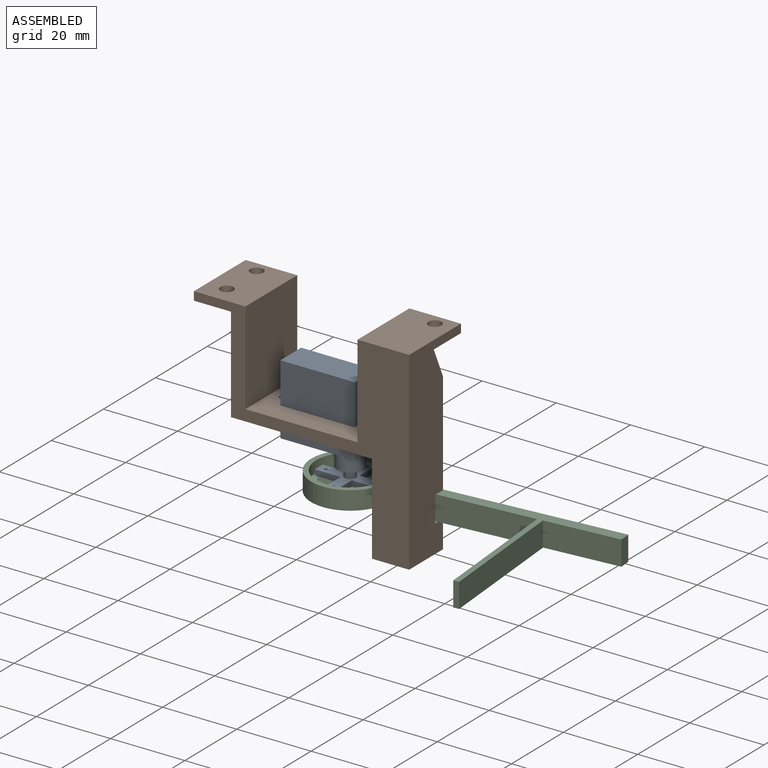
[diagram: assembled view]
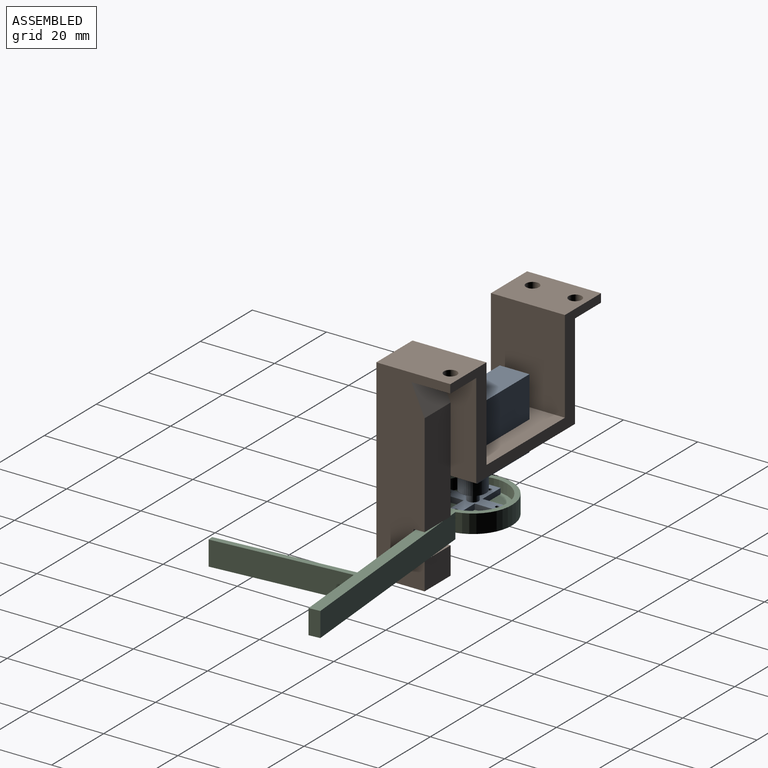
[diagram: assembled view, second angle]
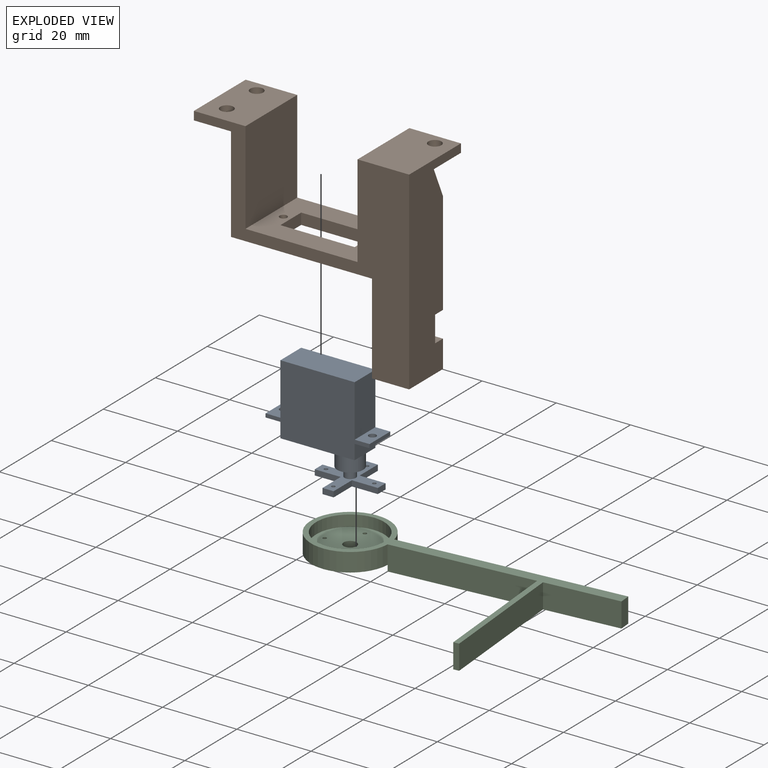
[diagram: exploded view]
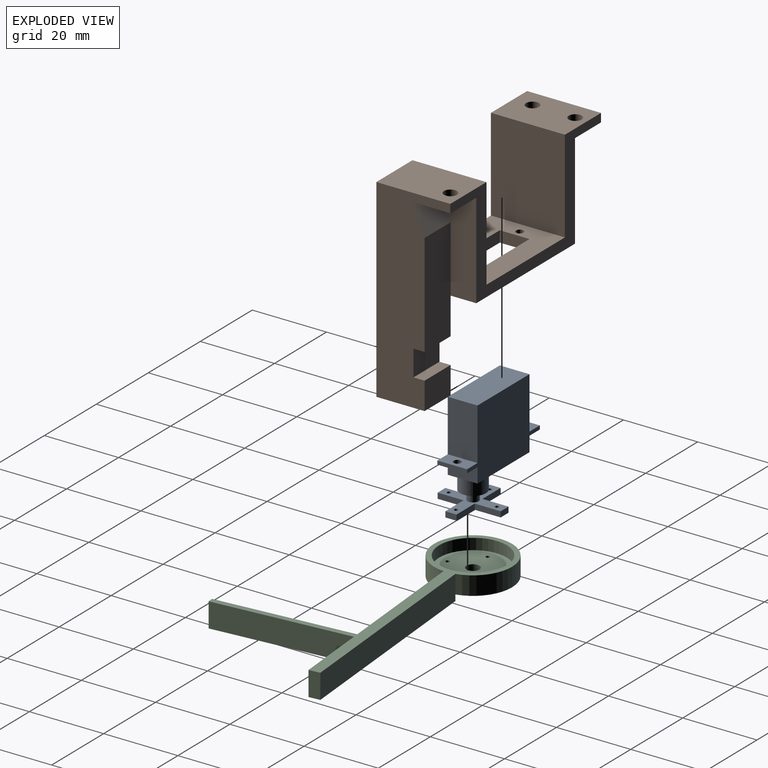
[diagram: exploded view, second angle]
ASSEMBLY  parts=3 mates=2
PART A: 41 faces, bbox 28.5x17x27 mm
  f0: plane 8x4mm, normal (-1,0,0), area 32mm2, adj f3,f5,f6,f16
  f1: plane 14x8mm, normal (1,0,0), area 112mm2, adj f3,f5,f7,f11
  f2: plane 14x8mm, normal (-1,0,0), area 112mm2, adj f3,f5,f7,f15
  f3: plane 24x19mm, normal (0,-1,0), area 384mm2, adj f0,f1,f2,f4,f6,f7,f10,f15
  f4: plane 8x4mm, normal (1,0,0), area 32mm2, adj f3,f5,f6,f13
  f5: plane 24x19mm, normal (0,1,0), area 384mm2, adj f0,f1,f2,f4,f6,f7,f12,f15
  f6: plane 20x8mm, normal (0,0,1), area 121.5mm2, adj f0,f3,f4,f5,f8
  f7: plane 20x8mm, normal (0,0,-1), area 160mm2, adj f1,f2,f3,f5
  f8: cylinder r=3.5mm len=7mm, axis (0,0,-1), area 88mm2, adj f6,f9
  f9: plane 7x7mm, normal (0,0,1), area 31.4mm2, adj f8,f18
  f10: plane 4x1mm, normal (0,-1,0), area 4mm2, adj f3,f11,f13,f14
  f11: plane 8x4mm, normal (0,0,-1), area 28.9mm2, adj f1,f10,f12,f14,f20
  f12: plane 4x1mm, normal (0,1,0), area 4mm2, adj f5,f11,f13,f14
  f13: plane 8x4mm, normal (0,0,1), area 28.9mm2, adj f4,f10,f12,f14,f20
  f14: plane 8x1mm, normal (1,0,0), area 8mm2, adj f10,f11,f12,f13
  f15: plane 8x4mm, normal (0,0,-1), area 28.9mm2, adj f2,f3,f5,f17,f19
  f16: plane 8x4mm, normal (0,0,1), area 28.9mm2, adj f0,f3,f5,f17,f19
  f17: plane 8x1mm, normal (-1,0,0), area 8mm2, adj f3,f5,f15,f16
  f18: cylinder r=1.5mm len=3mm, axis (0,0,-1), area 23.6mm2, adj f9,f34
  f19: cylinder r=1mm len=2mm, axis (0,0,1), area 6.3mm2, adj f15,f16
  f20: cylinder r=1mm len=2mm, axis (0,0,1), area 6.3mm2, adj f11,f13
  f21: plane 7x1.5mm, normal (0,1,0), area 10.5mm2, adj f22,f32,f33,f34
  f22: plane 3x1.5mm, normal (-1,0,0), area 4.5mm2, adj f21,f23,f33,f34
  f23: plane 7x1.5mm, normal (0,-1,0), area 10.5mm2, adj f22,f24,f33,f34
  f24: plane 7x1.5mm, normal (-1,0,0), area 10.5mm2, adj f23,f25,f33,f34
  f25: plane 3x1.5mm, normal (0,-1,0), area 4.5mm2, adj f24,f26,f33,f34
  f26: plane 7x1.5mm, normal (1,0,0), area 10.5mm2, adj f25,f27,f33,f34
  f27: plane 7x1.5mm, normal (0,-1,0), area 10.5mm2, adj f26,f28,f33,f34
  f28: plane 3x1.5mm, normal (1,0,0), area 4.5mm2, adj f27,f29,f33,f34
  f29: plane 7x1.5mm, normal (0,1,0), area 10.5mm2, adj f28,f30,f33,f34
  f30: plane 7x1.5mm, normal (1,0,0), area 10.5mm2, adj f29,f31,f33,f34
  f31: plane 3x1.5mm, normal (0,1,0), area 4.5mm2, adj f30,f32,f33,f34
  f32: plane 7x1.5mm, normal (-1,0,0), area 10.5mm2, adj f21,f31,f33,f34
  f33: plane 17x17mm, normal (0,0,1), area 86.7mm2, adj f21,f22,f23,f24,f25,f26,f27,f28
  f34: plane 17x17mm, normal (0,0,-1), area 82.8mm2, adj f18,f21,f22,f23,f24,f25,f26,f27
  f35: cylinder r=0.5mm len=1.5mm, axis (0,0,1), area 4.7mm2, adj f33,f34
  f36: cylinder r=0.5mm len=1.5mm, axis (0,0,1), area 4.7mm2, adj f33,f34
  f37: cylinder r=0.5mm len=1.5mm, axis (0,0,1), area 4.7mm2, adj f33,f34
  f38: cylinder r=0.5mm len=1.5mm, axis (0,0,1), area 4.7mm2, adj f33,f34
  f39: cylinder r=1mm len=2mm, axis (0,0,1), area 12.6mm2, adj f33,f40
  f40: plane 2x2mm, normal (0,0,1), area 3.1mm2, adj f39
PART B: 31 faces, bbox 58x19.9x52.3 mm
  f0: plane 52.3x19.93mm, normal (-1,0,0), area 661.1mm2, adj f1,f2,f5,f11,f14,f17,f26,f27
  f1: plane 27.75x10mm, normal (0,-1,0), area 277.5mm2, adj f0,f4,f25,f27,f30
  f2: plane 10x7.4mm, normal (0,-1,0), area 74mm2, adj f0,f25,f26,f29
  f3: plane 30.2x19.93mm, normal (0,0,1), area 435.7mm2, adj f5,f7,f8,f9,f10,f11,f13,f15
  f4: plane 25.7x10.47mm, normal (-1,0,0), area 192mm2, adj f1,f5,f12,f17,f30
  f5: plane 58x28mm, normal (0,-1,0), area 355.1mm2, adj f0,f3,f4,f6,f12,f13,f14,f15
  f6: plane 25.7x19.93mm, normal (1,0,0), area 512.3mm2, adj f5,f11,f12,f18
  f7: plane 8x3mm, normal (1,0,0), area 24mm2, adj f3,f8,f10,f12
  f8: plane 20x3mm, normal (0,-1,0), area 60mm2, adj f3,f7,f9,f12
  f9: plane 8x3mm, normal (-1,0,0), area 24mm2, adj f3,f8,f10,f12
  f10: plane 20x3mm, normal (0,1,0), area 60mm2, adj f3,f7,f9,f12
  f11: plane 58x52.3mm, normal (0,1,0), area 855.1mm2, adj f0,f3,f6,f12,f13,f14,f15,f16
  f12: plane 38x19.93mm, normal (0,0,-1), area 591.2mm2, adj f4,f5,f6,f7,f8,f9,f10,f11
  f13: plane 25x19.93mm, normal (1,0,0), area 498.4mm2, adj f3,f5,f11,f14
  f14: plane 19.93x13.9mm, normal (0,0,1), area 267.5mm2, adj f0,f5,f11,f13,f24
  f15: plane 25x19.93mm, normal (-1,0,0), area 498.4mm2, adj f3,f5,f11,f16
  f16: plane 19.93x13.9mm, normal (0,0,1), area 257.9mm2, adj f5,f11,f15,f19,f22,f23
  f17: plane 10.47x10mm, normal (0,0,-1), area 95mm2, adj f0,f4,f5,f24,f30
  f18: plane 19.93x10mm, normal (0,0,-1), area 180.1mm2, adj f5,f6,f11,f19,f22,f23
  f19: plane 19.93x2.3mm, normal (1,0,0), area 45.8mm2, adj f5,f11,f16,f18
  f20: cylinder r=1mm len=3mm, axis (0,0,-1), area 18.8mm2, adj f3,f12
  f21: cylinder r=1mm len=3mm, axis (0,0,-1), area 18.8mm2, adj f3,f12
  f22: cylinder r=1.75mm len=3.5mm, axis (0,0,-1), area 25.3mm2, adj f16,f18
  f23: cylinder r=1.75mm len=3.5mm, axis (0,0,-1), area 25.3mm2, adj f16,f18
  f24: cylinder r=1.75mm len=3.5mm, axis (0,0,-1), area 25.3mm2, adj f14,f17
  f25: plane 24.3x13mm, normal (1,0,0), area 295mm2, adj f1,f2,f11,f12,f26,f27,f28,f29
  f26: plane 13x10mm, normal (0,0,-1), area 130mm2, adj f0,f2,f11,f25
  f27: plane 10x3mm, normal (0,0,-1), area 30mm2, adj f0,f1,f25,f28
  f28: plane 10x7mm, normal (0,-1,0), area 70mm2, adj f0,f25,f27,f29
  f29: plane 10x3mm, normal (0,0,1), area 30mm2, adj f0,f2,f25,f28
  f30: plane 10x7.85mm, normal (0,-0.91,0.41), area 86.1mm2, adj f0,f1,f4,f17
PART C: 19 faces, bbox 80.5x49x6.6 mm
  f0: plane 38.11x6.6mm, normal (0,-1,0), area 251.5mm2, adj f2,f6,f14,f15,f17
  f1: plane 21x20.89mm, normal (0,0,1), area 333.4mm2, adj f2,f9,f10,f11,f12,f13,f14
  f2: cylinder r=10.5mm len=21mm, axis (0,0,-1), area 314.8mm2, adj f0,f1,f3,f6
  f3: plane 59.61x6.6mm, normal (0,1,0), area 393.4mm2, adj f2,f4,f6,f14,f15
  f4: plane 6.6x3mm, normal (-1,0,0), area 19.8mm2, adj f3,f5,f6,f15
  f5: plane 20x6.6mm, normal (0,-1,0), area 132mm2, adj f4,f6,f15,f16
  f6: plane 80.5x49mm, normal (0,0,-1), area 318.3mm2, adj f0,f2,f3,f4,f5,f7,f16,f17
  f7: cylinder r=9.14mm len=18.27mm, axis (0,0,-1), area 172.2mm2, adj f6,f8
  f8: plane 18.27x18.27mm, normal (0,0,-1), area 249.4mm2, adj f7,f9,f10,f11,f12,f13
  f9: cylinder r=0.5mm len=2mm, axis (0,0,-1), area 6.3mm2, adj f1,f8
  f10: cylinder r=0.5mm len=2mm, axis (0,0,-1), area 6.3mm2, adj f1,f8
  f11: cylinder r=0.5mm len=2mm, axis (0,0,-1), area 6.3mm2, adj f1,f8
  f12: cylinder r=1.75mm len=3.5mm, axis (0,0,-1), area 22mm2, adj f1,f8
  f13: cylinder r=0.5mm len=2mm, axis (0,0,-1), area 6.3mm2, adj f1,f8
  f14: plane 3x1.6mm, normal (1,0,0), area 4.8mm2, adj f0,f1,f3,f15
  f15: plane 59.61x40mm, normal (0,0,1), area 234.3mm2, adj f0,f3,f4,f5,f14,f16,f17,f18
  f16: plane 37x6.6mm, normal (-1,0,0), area 244.2mm2, adj f5,f6,f15,f18
  f17: plane 37x6.6mm, normal (1,0,0), area 244.2mm2, adj f0,f6,f15,f18
  f18: plane 6.6x1.5mm, normal (0,-1,0), area 9.9mm2, adj f6,f15,f16,f17
PLACE A rot(axis=(0,1,0),180deg) t=(-45.9,29.61,21.97)mm
PLACE B rot(axis=(0,0,1),180deg) t=(-34.24,24.35,7.97)mm
PLACE C rot(axis=(0.04,-1,0),180deg) t=(-28.14,23.81,-2.03)mm
MATE revolute C.f7 <-> A.f8  axis (0,0,1) through (-28.14,23.81,-5.03)mm
MATE fastened A.f20 <-> B.f20  axis (0,0,-1) through (-46.14,23.81,6.97)mm
